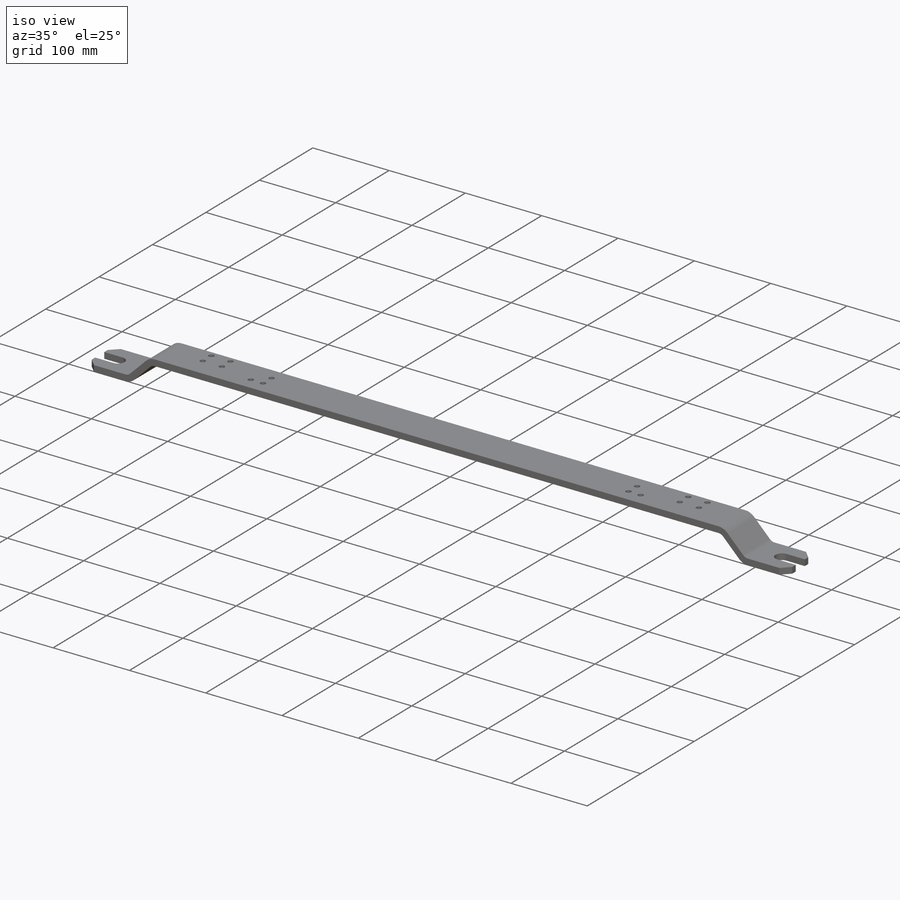
[diagram: iso view]
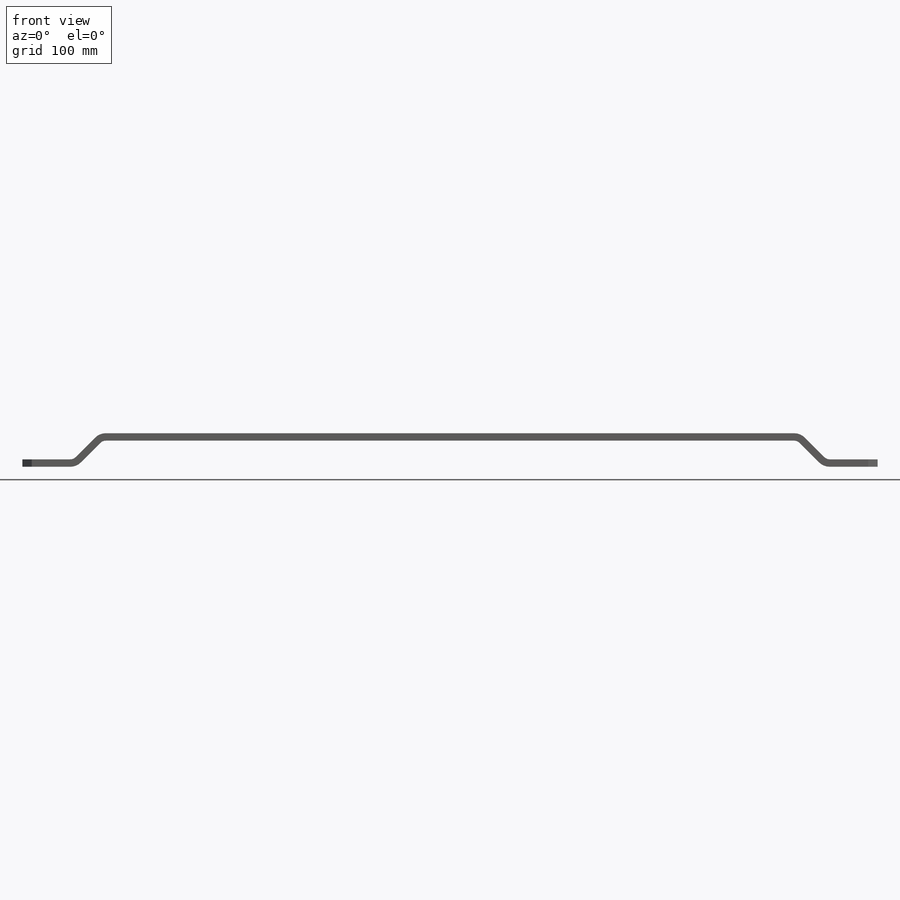
[diagram: front view]
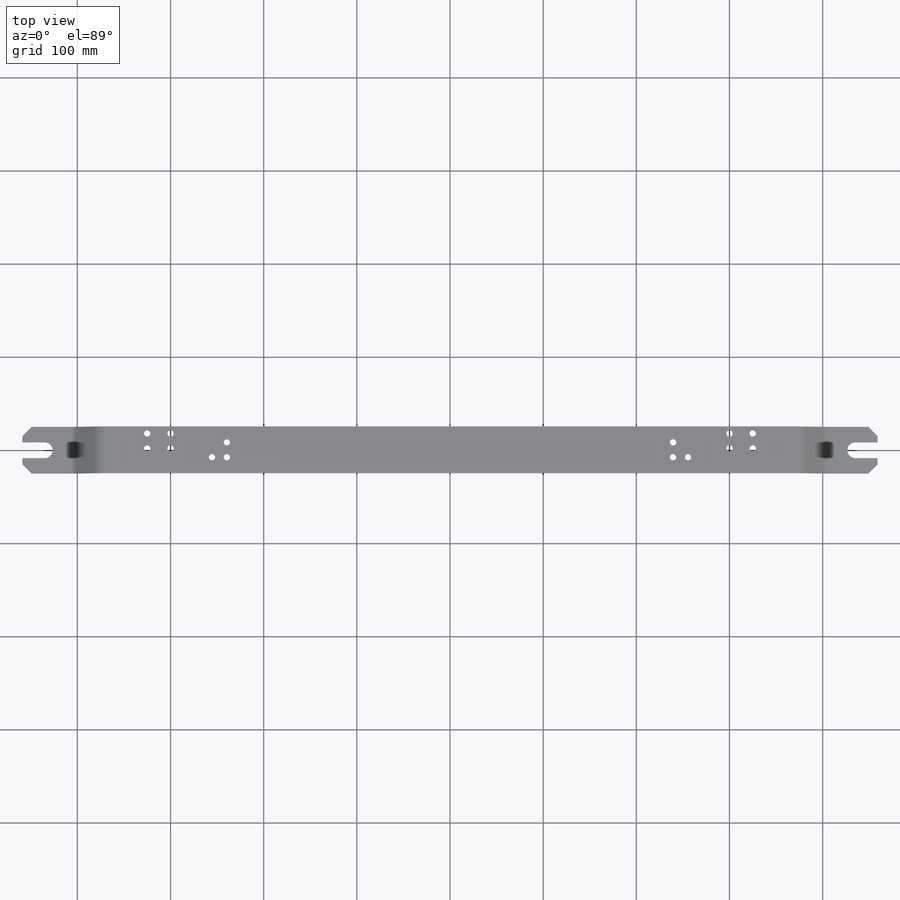
[diagram: top view]
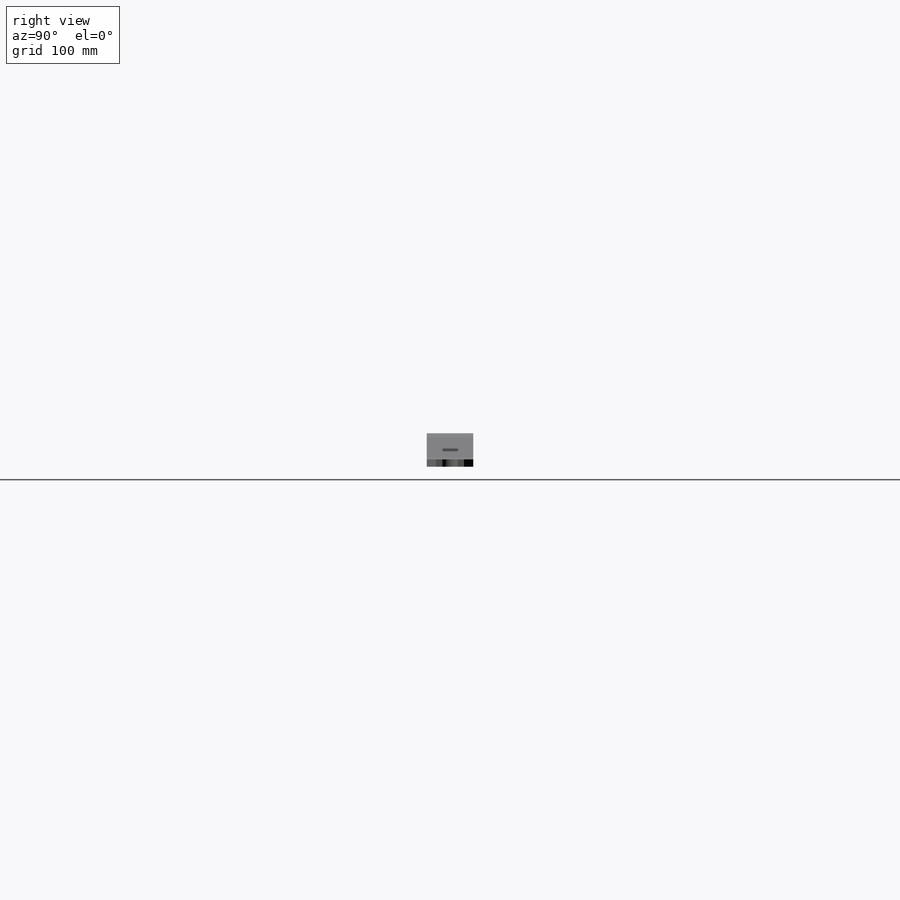
[diagram: right view]
SOLIDWORKS PART (.sldprt)
format: sldprt  version: not decoded by parser v0  size: 643,584 bytes
history: native  units: mm
features: chamfer x14, sketch x7, sheet_metal_op x5, mirror x4, plane x3, material x1, cut_extrude x1, hole x1, thread x1 + 6 further entries (+9 scaffold rows collapsed)
feature tree (52):
  scaffold x9  (default folders/planes/origin — collapsed)
  material  " 09Г2С ГОСТ 4543-71"
  plane  "Спереди"
  plane  "Сверху"
  plane  "Слева"
  "Начало координат"
  "PTricksFreeParameters"
  "PTricksEqu"
  "PTricksFreeParameters"
  sketch  "Эскиз1"  dims[c1.D1=~38.107656mm c2.D1=50.0mm c2.D2=918.0mm]
  sheet_metal_op  "Листовой металл1"  Толщина=8mm
  sheet_metal_op  "Базовая кромка1"
  sketch  "Эскиз3"  dims[c1.D1=51.5mm c2.D1=8.0mm c2.D4=45.0deg c2.D5=1.0 c2.D8=4.0mm c2.D9=4.0mm]
  sheet_metal_op  "Изгиб3"
  chamfer  "Фаска1"  Distance=10mm Angle=45deg
  sketch  "Эскиз4"  dims[c1.D1=~24.620605mm c1.D2=17.0mm c2.D1=870.0mm c2.D3=6.5mm]
  cut_extrude  "Вытянуть1"  [1 undecoded]
  mirror  "Зеркальное отражение1"
  sheet_metal_op  "Зеркальное отражение сгиба1"
  sheet_metal_op  "Зеркальное отражение сгиба2"
  sketch  "Эскиз5"  dims[D1=7.5mm D2=16.0mm D3=134.0mm D4=25.0mm D5=227.5mm D6=16.0mm D7=8.0mm D8=17.0mm]
  hole  "Отверстие обработанное метчиком M8x1.251"  [1 undecoded]
  sketch  "Эскиз7"  dims[D1=16.0mm D2=17.0mm]
  sketch  "Эскиз6"  dims[hole-wizard template sketch: 54 standard entries collapsed; hole parameters kept: c17.Диаметр проходного сверла=6.8mm c17.Глубина проходного сверла=8.0mm c17.Диаметр передней зенковки=8.5mm c17.D4=~3.666174mm c17.Угол передней зенковки=90.0deg]
  thread  "Отверстие резьбы1"  Diameter=8mm  [1 undecoded]
  chamfer  "Отверстие резьбы2"  Distance=8mm
  chamfer  "Отверстие резьбы3"  Distance=8mm
  chamfer  "Отверстие резьбы4"  Distance=8mm
  chamfer  "Отверстие резьбы5"  Distance=8mm
  chamfer  "Отверстие резьбы6"  Distance=8mm
  chamfer  "Отверстие резьбы7"  Distance=8mm
  chamfer  "Отверстие резьбы8"  Distance=8mm
  chamfer  "Отверстие резьбы9"  Distance=8mm
  chamfer  "Отверстие резьбы10"  Distance=8mm
  chamfer  "Отверстие резьбы11"  Distance=8mm
  chamfer  "Отверстие резьбы12"  Distance=8mm
  chamfer  "Отверстие резьбы13"  Distance=8mm
  chamfer  "Отверстие резьбы14"  Distance=8mm
  "Развертка1"
  sketch  "Сгиб-Линии1"
  "Преобразование эскиза1"
  mirror  "Плоское состояние-<Изгиб3>1"
  mirror  "Плоское состояние-<Зеркальное отражение сгиба1>1"
  mirror  "Плоское состояние-<Зеркальное отражение сгиба2>1"
decode coverage: 22 of 33 modeling features carry decoded parameters; 6 rows unclassified (native names shown)
note: ~ marks probable driven/reference dimensions
note: 3 parameter values undecoded
note: suppression state not decoded; provenance and decode notes live in map.json
